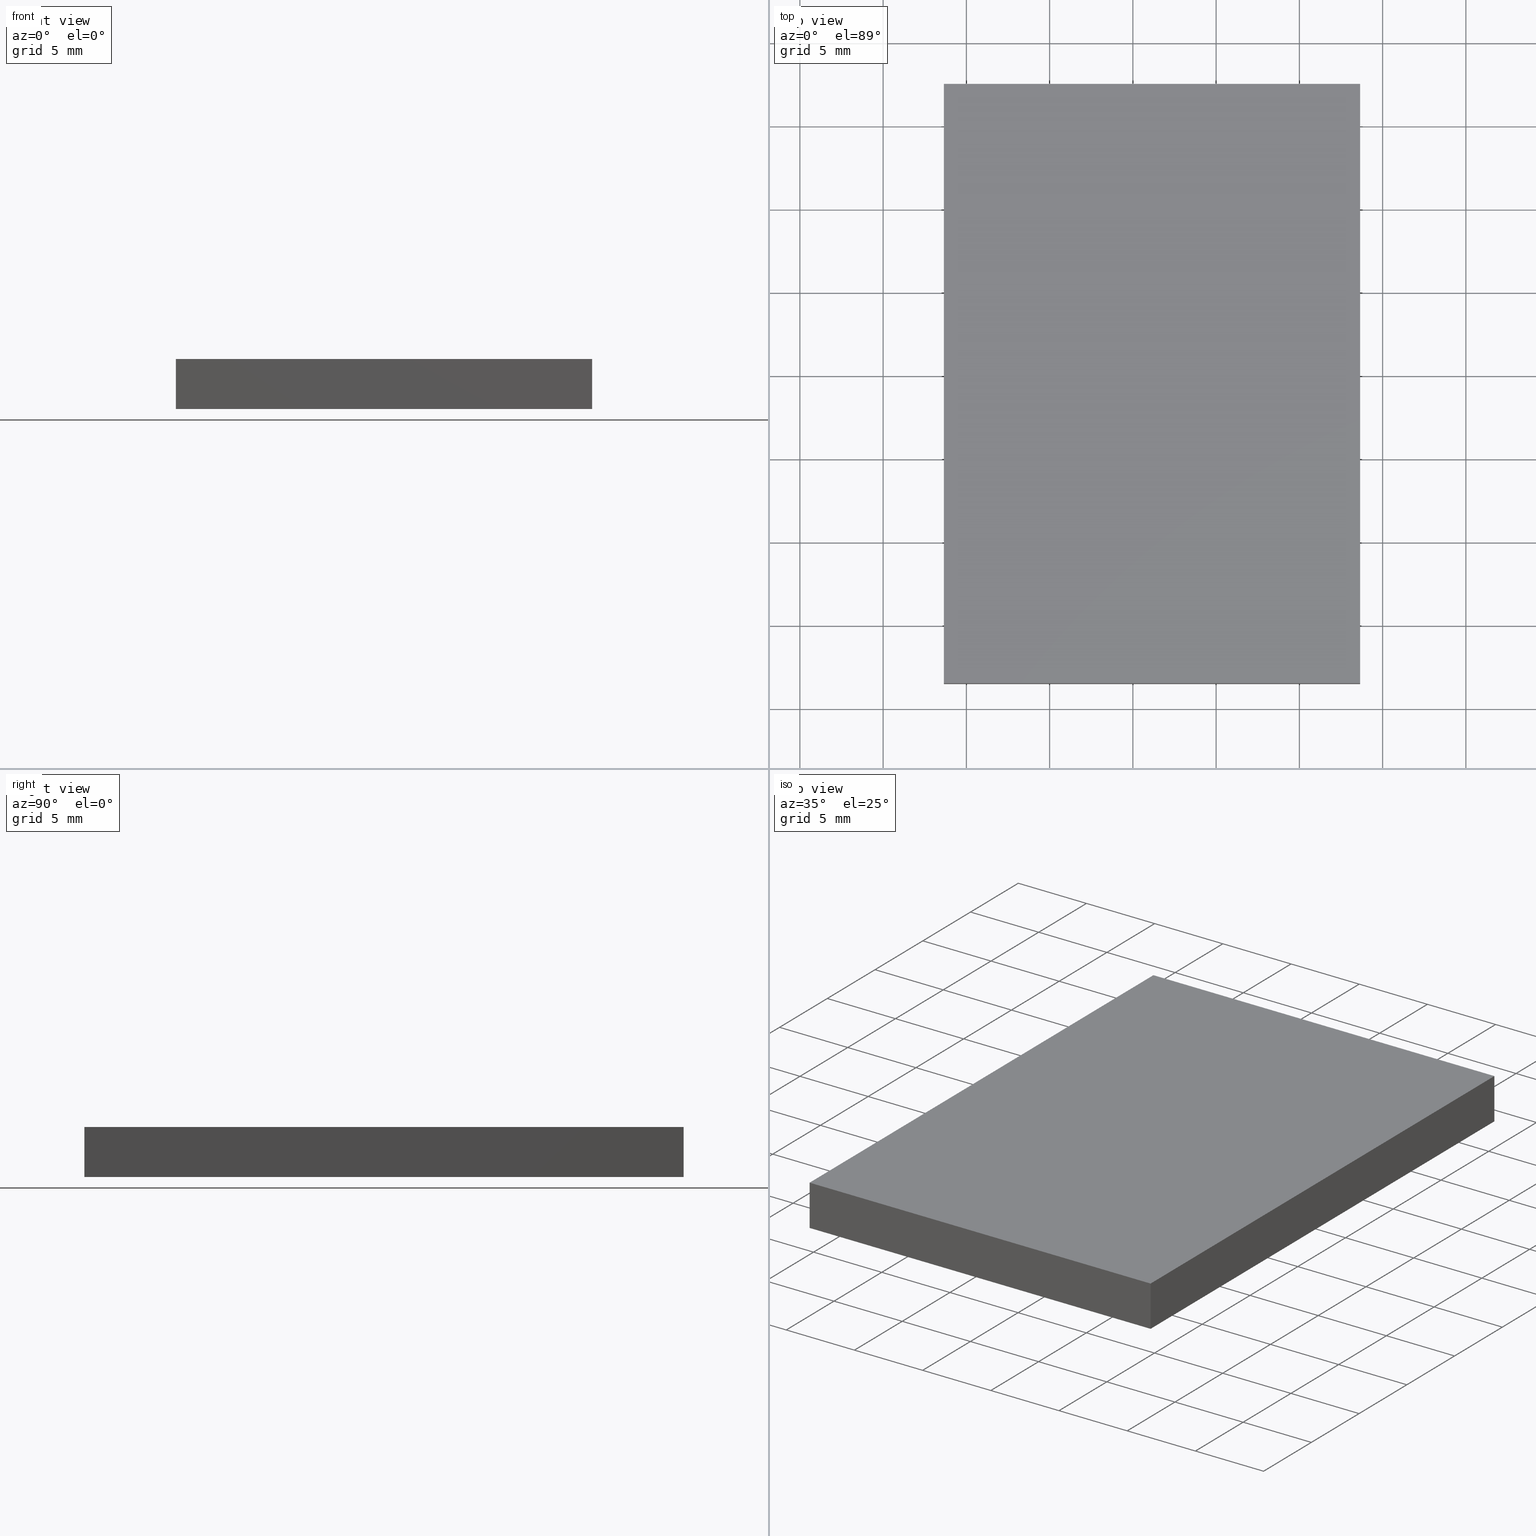
[diagram: canonical four-view strip — front | top / right | iso, engineering-drawing reading convention]
A machine part, canonical four-view strip (front | top / right | iso — engineering-drawing reading convention). The complete STEP part file that produces these views, byte-faithful:
ISO-10303-21;
HEADER;
FILE_DESCRIPTION (( 'STEP AP203' ),
    '1' );
FILE_NAME ('340523.STEP',
    '2019-07-30T07:29:26',
    ( '' ),
    ( '' ),
    'SwSTEP 2.0',
    'SolidWorks 2016',
    '' );
FILE_SCHEMA (( 'CONFIG_CONTROL_DESIGN' ));
ENDSEC;

DATA;
#1 = PERSON_AND_ORGANIZATION_ROLE ( 'design_supplier' ) ;
#2 = CC_DESIGN_PERSON_AND_ORGANIZATION_ASSIGNMENT ( #62, #280, ( #296 ) ) ;
#3 = APPROVAL_ROLE ( '' ) ;
#4 = LOCAL_TIME ( 15, 29, 26.00000000000000000, #18 ) ;
#5 = ORIENTED_EDGE ( 'NONE', *, *, #182, .T. ) ;
#6 = APPLICATION_CONTEXT ( 'configuration controlled 3d designs of mechanical parts and assemblies' ) ;
#7 = COORDINATED_UNIVERSAL_TIME_OFFSET ( 8, 0, .AHEAD. ) ;
#8 = PERSON_AND_ORGANIZATION ( #311, #142 ) ;
#9 = DATE_AND_TIME ( #122, #149 ) ;
#10 = VERTEX_POINT ( 'NONE', #92 ) ;
#11 = AXIS2_PLACEMENT_3D ( 'NONE', #20, #292, #147 ) ;
#12 = DESIGN_CONTEXT ( 'detailed design', #6, 'design' ) ;
#13 = VECTOR ( 'NONE', #24, 1000.000000000000000 ) ;
#14 = PRODUCT_DEFINITION ( 'δ֪', '', #206, #12 ) ;
#15 = DIRECTION ( 'NONE',  ( 2.891205793294678800E-016, -1.000000000000000000, 0.0000000000000000000 ) ) ;
#16 = DIRECTION ( 'NONE',  ( -0.0000000000000000000, 0.0000000000000000000, 1.000000000000000000 ) ) ;
#17 = PERSON_AND_ORGANIZATION ( #311, #142 ) ;
#18 = COORDINATED_UNIVERSAL_TIME_OFFSET ( 8, 0, .AHEAD. ) ;
#19 = FACE_OUTER_BOUND ( 'NONE', #86, .T. ) ;
#20 = CARTESIAN_POINT ( 'NONE',  ( 0.0000000000000000000, 0.0000000000000000000, 0.0000000000000000000 ) ) ;
#21 = CC_DESIGN_SECURITY_CLASSIFICATION ( #296, ( #133 ) ) ;
#22 = CARTESIAN_POINT ( 'NONE',  ( -6.351626016260158100, -28.47967479674797200, 3.000000000000000000 ) ) ;
#23 = LOCAL_TIME ( 15, 29, 26.00000000000000000, #53 ) ;
#24 = DIRECTION ( 'NONE',  ( -0.0000000000000000000, -0.0000000000000000000, -1.000000000000000000 ) ) ;
#25 = ORIENTED_EDGE ( 'NONE', *, *, #109, .F. ) ;
#26 = CARTESIAN_POINT ( 'NONE',  ( 18.64837398373983700, 7.520325203252024700, 0.0000000000000000000 ) ) ;
#27 = CARTESIAN_POINT ( 'NONE',  ( -6.351626016260162500, 7.520325203252024700, 3.000000000000000000 ) ) ;
#28 = VECTOR ( 'NONE', #250, 1000.000000000000000 ) ;
#29 = ORIENTED_EDGE ( 'NONE', *, *, #124, .T. ) ;
#30 = PERSON_AND_ORGANIZATION_ROLE ( 'creator' ) ;
#31 = CC_DESIGN_DATE_AND_TIME_ASSIGNMENT ( #140, #297, ( #296 ) ) ;
#32 = APPROVAL_STATUS ( 'not_yet_approved' ) ;
#33 = PERSON_AND_ORGANIZATION_ROLE ( 'creator' ) ;
#34 = APPROVAL_PERSON_ORGANIZATION ( #148, #99, #129 ) ;
#35 = VERTEX_POINT ( 'NONE', #70 ) ;
#36 = CC_DESIGN_DATE_AND_TIME_ASSIGNMENT ( #101, #58, ( #14 ) ) ;
#37 = CC_DESIGN_PERSON_AND_ORGANIZATION_ASSIGNMENT ( #126, #1, ( #133 ) ) ;
#38 = DATE_AND_TIME ( #74, #4 ) ;
#39 = EDGE_LOOP ( 'NONE', ( #217, #25, #55, #286 ) ) ;
#40 = DATE_AND_TIME ( #47, #283 ) ;
#41 = ORIENTED_EDGE ( 'NONE', *, *, #194, .F. ) ;
#42 = CARTESIAN_POINT ( 'NONE',  ( -6.351626016260162500, 7.520325203252024700, 3.000000000000000000 ) ) ;
#43 = PERSON_AND_ORGANIZATION ( #311, #142 ) ;
#44 = VERTEX_POINT ( 'NONE', #165 ) ;
#45 = CC_DESIGN_PERSON_AND_ORGANIZATION_ASSIGNMENT ( #179, #33, ( #163 ) ) ;
#46 =( NAMED_UNIT ( * ) SI_UNIT ( $, .STERADIAN. ) SOLID_ANGLE_UNIT ( ) );
#47 = CALENDAR_DATE ( 2019, 30, 7 ) ;
#48 = ORIENTED_EDGE ( 'NONE', *, *, #157, .F. ) ;
#49 = MECHANICAL_CONTEXT ( 'NONE', #146, 'mechanical' ) ;
#50 = CARTESIAN_POINT ( 'NONE',  ( 18.64837398373984800, -28.47967479674797200, 3.000000000000000000 ) ) ;
#51 = CC_DESIGN_PERSON_AND_ORGANIZATION_ASSIGNMENT ( #314, #276, ( #206 ) ) ;
#52 = CARTESIAN_POINT ( 'NONE',  ( -6.351626016260158100, -28.47967479674797200, 3.000000000000000000 ) ) ;
#53 = COORDINATED_UNIVERSAL_TIME_OFFSET ( 8, 0, .AHEAD. ) ;
#54 = LOCAL_TIME ( 15, 29, 26.00000000000000000, #252 ) ;
#55 = ORIENTED_EDGE ( 'NONE', *, *, #182, .F. ) ;
#56 = APPROVAL ( #211, 'δָ��' ) ;
#57 = VECTOR ( 'NONE', #268, 1000.000000000000000 ) ;
#58 = DATE_TIME_ROLE ( 'creation_date' ) ;
#59 = APPROVAL_DATE_TIME ( #238, #56 ) ;
#60 = LINE ( 'NONE', #52, #28 ) ;
#61 = AXIS2_PLACEMENT_3D ( 'NONE', #233, #207, #117 ) ;
#62 = PERSON_AND_ORGANIZATION ( #311, #142 ) ;
#63 = LINE ( 'NONE', #42, #224 ) ;
#64 = COORDINATED_UNIVERSAL_TIME_OFFSET ( 8, 0, .AHEAD. ) ;
#65 = COORDINATED_UNIVERSAL_TIME_OFFSET ( 8, 0, .AHEAD. ) ;
#66 = DIRECTION ( 'NONE',  ( 0.0000000000000000000, -0.0000000000000000000, -1.000000000000000000 ) ) ;
#67 = CC_DESIGN_APPROVAL ( #56, ( #296 ) ) ;
#68 = ADVANCED_FACE ( 'NONE', ( #298 ), #306, .T. ) ;
#69 = LINE ( 'NONE', #290, #13 ) ;
#70 = CARTESIAN_POINT ( 'NONE',  ( 18.64837398373983700, 7.520325203252024700, 3.000000000000000000 ) ) ;
#71 = FACE_OUTER_BOUND ( 'NONE', #302, .T. ) ;
#72 = APPLICATION_CONTEXT ( 'configuration controlled 3d designs of mechanical parts and assemblies' ) ;
#73 = LOCAL_TIME ( 15, 29, 26.00000000000000000, #153 ) ;
#74 = CALENDAR_DATE ( 2019, 30, 7 ) ;
#75 = DIRECTION ( 'NONE',  ( -1.000000000000000000, -0.0000000000000000000, -0.0000000000000000000 ) ) ;
#76 = DIRECTION ( 'NONE',  ( 1.000000000000000000, 1.204669080539449300E-016, -0.0000000000000000000 ) ) ;
#77 = EDGE_CURVE ( 'NONE', #180, #190, #108, .T. ) ;
#78 = APPROVAL_ROLE ( '' ) ;
#79 = APPROVAL_PERSON_ORGANIZATION ( #43, #82, #187 ) ;
#80 = ORIENTED_EDGE ( 'NONE', *, *, #88, .F. ) ;
#81 = APPROVAL_ROLE ( '' ) ;
#82 = APPROVAL ( #32, 'δָ��' ) ;
#83 = COORDINATED_UNIVERSAL_TIME_OFFSET ( 8, 0, .AHEAD. ) ;
#84 = CC_DESIGN_PERSON_AND_ORGANIZATION_ASSIGNMENT ( #203, #277, ( #299 ) ) ;
#85 = CALENDAR_DATE ( 2019, 30, 7 ) ;
#86 = EDGE_LOOP ( 'NONE', ( #281, #48, #231, #168 ) ) ;
#87 = DESIGN_CONTEXT ( 'detailed design', #72, 'design' ) ;
#88 = EDGE_CURVE ( 'NONE', #174, #180, #63, .T. ) ;
#89 = LOCAL_TIME ( 15, 29, 26.00000000000000000, #7 ) ;
#90 = ORIENTED_EDGE ( 'NONE', *, *, #173, .F. ) ;
#91 = DIRECTION ( 'NONE',  ( -1.000000000000000000, -2.891205793294678800E-016, 0.0000000000000000000 ) ) ;
#92 = CARTESIAN_POINT ( 'NONE',  ( 18.64837398373984800, -28.47967479674797200, 0.0000000000000000000 ) ) ;
#93 = PERSON_AND_ORGANIZATION ( #311, #142 ) ;
#94 = ORIENTED_EDGE ( 'NONE', *, *, #88, .T. ) ;
#95 = AXIS2_PLACEMENT_3D ( 'NONE', #100, #151, #98 ) ;
#96 = ADVANCED_FACE ( 'NONE', ( #71 ), #287, .F. ) ;
#97 = DIRECTION ( 'NONE',  ( -1.000000000000000000, -0.0000000000000000000, -0.0000000000000000000 ) ) ;
#98 = DIRECTION ( 'NONE',  ( 0.0000000000000000000, -0.0000000000000000000, 1.000000000000000000 ) ) ;
#99 = APPROVAL ( #183, 'δָ��' ) ;
#100 = CARTESIAN_POINT ( 'NONE',  ( -6.351626016260158100, -28.47967479674797200, 3.000000000000000000 ) ) ;
#101 = DATE_AND_TIME ( #164, #215 ) ;
#102 = LINE ( 'NONE', #204, #235 ) ;
#103 = EDGE_LOOP ( 'NONE', ( #159, #236, #90, #116 ) ) ;
#104 = SECURITY_CLASSIFICATION_LEVEL ( 'unclassified' ) ;
#105 = APPLICATION_PROTOCOL_DEFINITION ( 'international standard', 'config_control_design', 1994, #72 ) ;
#106 = APPROVAL_DATE_TIME ( #185, #138 ) ;
#107 = FACE_OUTER_BOUND ( 'NONE', #39, .T. ) ;
#108 = LINE ( 'NONE', #197, #57 ) ;
#109 = EDGE_CURVE ( 'NONE', #200, #10, #239, .T. ) ;
#110 = AXIS2_PLACEMENT_3D ( 'NONE', #196, #113, #66 ) ;
#111 = PERSON_AND_ORGANIZATION ( #311, #142 ) ;
#112 = PRODUCT_DEFINITION_SHAPE ( 'NONE', 'NONE',  #14 ) ;
#113 = DIRECTION ( 'NONE',  ( 0.0000000000000000000, -1.000000000000000000, 0.0000000000000000000 ) ) ;
#114 = CC_DESIGN_PERSON_AND_ORGANIZATION_ASSIGNMENT ( #284, #152, ( #170 ) ) ;
#115 = ADVANCED_FACE ( 'NONE', ( #19 ), #269, .F. ) ;
#116 = ORIENTED_EDGE ( 'NONE', *, *, #304, .F. ) ;
#117 = DIRECTION ( 'NONE',  ( 1.000000000000000000, 0.0000000000000000000, 0.0000000000000000000 ) ) ;
#118 = EDGE_CURVE ( 'NONE', #35, #155, #254, .T. ) ;
#119 = ADVANCED_FACE ( 'NONE', ( #249 ), #291, .F. ) ;
#120 = CARTESIAN_POINT ( 'NONE',  ( -6.351626016260162500, 7.520325203252024700, 3.000000000000000000 ) ) ;
#121 = PLANE ( 'NONE',  #95 ) ;
#122 = CALENDAR_DATE ( 2019, 30, 7 ) ;
#123 = CARTESIAN_POINT ( 'NONE',  ( 0.0000000000000000000, 0.0000000000000000000, 0.0000000000000000000 ) ) ;
#124 = EDGE_CURVE ( 'NONE', #35, #174, #305, .T. ) ;
#125 = DATE_TIME_ROLE ( 'creation_date' ) ;
#126 = PERSON_AND_ORGANIZATION ( #311, #142 ) ;
#127 = SECURITY_CLASSIFICATION_LEVEL ( 'unclassified' ) ;
#128 =( GEOMETRIC_REPRESENTATION_CONTEXT ( 3 ) GLOBAL_UNCERTAINTY_ASSIGNED_CONTEXT ( ( #136 ) ) GLOBAL_UNIT_ASSIGNED_CONTEXT ( ( #271, #178, #46 ) ) REPRESENTATION_CONTEXT ( 'NONE', 'WORKASPACE' ) );
#129 = APPROVAL_ROLE ( '' ) ;
#130 = DATE_AND_TIME ( #85, #89 ) ;
#131 = APPROVAL_DATE_TIME ( #38, #82 ) ;
#132 = PRODUCT_RELATED_PRODUCT_CATEGORY ( 'detail', '', ( #170 ) ) ;
#133 = PRODUCT_DEFINITION_FORMATION_WITH_SPECIFIED_SOURCE ( '�κ�', '', #198, .NOT_KNOWN. ) ;
#134 = LINE ( 'NONE', #248, #205 ) ;
#135 = ORIENTED_EDGE ( 'NONE', *, *, #118, .F. ) ;
#136 = UNCERTAINTY_MEASURE_WITH_UNIT (LENGTH_MEASURE( 1.000000000000000100E-005 ), #271, 'distance_accuracy_value', 'NONE');
#137 = EDGE_CURVE ( 'NONE', #44, #190, #134, .T. ) ;
#138 = APPROVAL ( #181, 'δָ��' ) ;
#139 = COORDINATED_UNIVERSAL_TIME_OFFSET ( 8, 0, .AHEAD. ) ;
#140 = DATE_AND_TIME ( #216, #274 ) ;
#141 = CARTESIAN_POINT ( 'NONE',  ( 18.64837398373983700, 7.520325203252024700, 3.000000000000000000 ) ) ;
#142 = ORGANIZATION ( 'δָ��', 'δָ��', '' ) ;
#143 = DIRECTION ( 'NONE',  ( -0.0000000000000000000, -0.0000000000000000000, -1.000000000000000000 ) ) ;
#144 = ORIENTED_EDGE ( 'NONE', *, *, #77, .F. ) ;
#145 = CC_DESIGN_PERSON_AND_ORGANIZATION_ASSIGNMENT ( #199, #229, ( #198 ) ) ;
#146 = APPLICATION_CONTEXT ( 'configuration controlled 3d designs of mechanical parts and assemblies' ) ;
#147 = DIRECTION ( 'NONE',  ( 1.000000000000000000, 0.0000000000000000000, 0.0000000000000000000 ) ) ;
#148 = PERSON_AND_ORGANIZATION ( #311, #142 ) ;
#149 = LOCAL_TIME ( 15, 29, 26.00000000000000000, #83 ) ;
#150 = APPLICATION_PROTOCOL_DEFINITION ( 'international standard', 'config_control_design', 1994, #146 ) ;
#151 = DIRECTION ( 'NONE',  ( 0.0000000000000000000, 1.000000000000000000, 0.0000000000000000000 ) ) ;
#152 = PERSON_AND_ORGANIZATION_ROLE ( 'design_owner' ) ;
#153 = COORDINATED_UNIVERSAL_TIME_OFFSET ( 8, 0, .AHEAD. ) ;
#154 = VECTOR ( 'NONE', #97, 1000.000000000000000 ) ;
#155 = VERTEX_POINT ( 'NONE', #172 ) ;
#156 = MECHANICAL_CONTEXT ( 'NONE', #275, 'mechanical' ) ;
#157 = EDGE_CURVE ( 'NONE', #174, #44, #69, .T. ) ;
#158 = LOCAL_TIME ( 15, 29, 26.00000000000000000, #65 ) ;
#159 = ORIENTED_EDGE ( 'NONE', *, *, #137, .F. ) ;
#160 = APPROVAL_DATE_TIME ( #166, #99 ) ;
#161 = LINE ( 'NONE', #313, #154 ) ;
#162 = EDGE_LOOP ( 'NONE', ( #94, #5, #242, #29 ) ) ;
#163 = PRODUCT_DEFINITION ( 'δ֪', '', #133, #87 ) ;
#164 = CALENDAR_DATE ( 2019, 30, 7 ) ;
#165 = CARTESIAN_POINT ( 'NONE',  ( -6.351626016260162500, 7.520325203252024700, 0.0000000000000000000 ) ) ;
#166 = DATE_AND_TIME ( #300, #73 ) ;
#167 = PERSON_AND_ORGANIZATION ( #311, #142 ) ;
#168 = ORIENTED_EDGE ( 'NONE', *, *, #118, .T. ) ;
#169 = APPROVAL ( #260, 'δָ��' ) ;
#170 = PRODUCT ( '340523', '340523', '', ( #156 ) ) ;
#171 = DIRECTION ( 'NONE',  ( 0.0000000000000000000, 0.0000000000000000000, 1.000000000000000000 ) ) ;
#172 = CARTESIAN_POINT ( 'NONE',  ( 18.64837398373983700, 7.520325203252024700, 0.0000000000000000000 ) ) ;
#173 = EDGE_CURVE ( 'NONE', #10, #155, #223, .T. ) ;
#174 = VERTEX_POINT ( 'NONE', #27 ) ;
#175 = CC_DESIGN_SECURITY_CLASSIFICATION ( #299, ( #206 ) ) ;
#176 = DIRECTION ( 'NONE',  ( 1.204669080539449300E-016, -1.000000000000000000, 0.0000000000000000000 ) ) ;
#177 = DIRECTION ( 'NONE',  ( 1.000000000000000000, 0.0000000000000000000, 0.0000000000000000000 ) ) ;
#178 =( NAMED_UNIT ( * ) PLANE_ANGLE_UNIT ( ) SI_UNIT ( $, .RADIAN. ) );
#179 = PERSON_AND_ORGANIZATION ( #311, #142 ) ;
#180 = VERTEX_POINT ( 'NONE', #22 ) ;
#181 = APPROVAL_STATUS ( 'not_yet_approved' ) ;
#182 = EDGE_CURVE ( 'NONE', #180, #200, #60, .T. ) ;
#183 = APPROVAL_STATUS ( 'not_yet_approved' ) ;
#184 = APPLICATION_PROTOCOL_DEFINITION ( 'international standard', 'config_control_design', 1994, #275 ) ;
#185 = DATE_AND_TIME ( #261, #23 ) ;
#186 = VECTOR ( 'NONE', #75, 1000.000000000000000 ) ;
#187 = APPROVAL_ROLE ( '' ) ;
#188 = CC_DESIGN_APPROVAL ( #138, ( #299 ) ) ;
#189 = APPROVAL_PERSON_ORGANIZATION ( #17, #138, #3 ) ;
#190 = VERTEX_POINT ( 'NONE', #202 ) ;
#191 = AXIS2_PLACEMENT_3D ( 'NONE', #123, #171, #227 ) ;
#192 = LINE ( 'NONE', #201, #262 ) ;
#193 = ORIENTED_EDGE ( 'NONE', *, *, #137, .T. ) ;
#194 = EDGE_CURVE ( 'NONE', #200, #35, #102, .T. ) ;
#195 = CARTESIAN_POINT ( 'NONE',  ( 0.0000000000000000000, 0.0000000000000000000, 3.000000000000000000 ) ) ;
#196 = CARTESIAN_POINT ( 'NONE',  ( -6.351626016260162500, 7.520325203252024700, 3.000000000000000000 ) ) ;
#197 = CARTESIAN_POINT ( 'NONE',  ( -6.351626016260158100, -28.47967479674797200, 3.000000000000000000 ) ) ;
#198 = PRODUCT ( '340523', '340523', '', ( #49 ) ) ;
#199 = PERSON_AND_ORGANIZATION ( #311, #142 ) ;
#200 = VERTEX_POINT ( 'NONE', #50 ) ;
#201 = CARTESIAN_POINT ( 'NONE',  ( -6.351626016260158100, -28.47967479674797200, 0.0000000000000000000 ) ) ;
#202 = CARTESIAN_POINT ( 'NONE',  ( -6.351626016260158100, -28.47967479674797200, 0.0000000000000000000 ) ) ;
#203 = PERSON_AND_ORGANIZATION ( #311, #142 ) ;
#204 = CARTESIAN_POINT ( 'NONE',  ( 18.64837398373983700, 7.520325203252024700, 3.000000000000000000 ) ) ;
#205 = VECTOR ( 'NONE', #176, 1000.000000000000000 ) ;
#206 = PRODUCT_DEFINITION_FORMATION_WITH_SPECIFIED_SOURCE ( '�κ�', '', #170, .NOT_KNOWN. ) ;
#207 = DIRECTION ( 'NONE',  ( 0.0000000000000000000, 0.0000000000000000000, 1.000000000000000000 ) ) ;
#208 = DATE_TIME_ROLE ( 'classification_date' ) ;
#209 = AXIS2_PLACEMENT_3D ( 'NONE', #315, #76, #272 ) ;
#210 = APPROVAL_DATE_TIME ( #9, #169 ) ;
#211 = APPROVAL_STATUS ( 'not_yet_approved' ) ;
#212 = APPROVAL_STATUS ( 'not_yet_approved' ) ;
#213 = PERSON_AND_ORGANIZATION_ROLE ( 'design_supplier' ) ;
#214 = PRODUCT_RELATED_PRODUCT_CATEGORY ( 'detail', '', ( #198 ) ) ;
#215 = LOCAL_TIME ( 15, 29, 26.00000000000000000, #139 ) ;
#216 = CALENDAR_DATE ( 2019, 30, 7 ) ;
#217 = ORIENTED_EDGE ( 'NONE', *, *, #304, .T. ) ;
#218 = AXIS2_PLACEMENT_3D ( 'NONE', #195, #16, #220 ) ;
#219 = APPROVAL_PERSON_ORGANIZATION ( #167, #169, #78 ) ;
#220 = DIRECTION ( 'NONE',  ( 1.000000000000000000, 0.0000000000000000000, 0.0000000000000000000 ) ) ;
#221 = CC_DESIGN_APPROVAL ( #99, ( #206 ) ) ;
#222 = DIRECTION ( 'NONE',  ( 1.204669080539449300E-016, -1.000000000000000000, 0.0000000000000000000 ) ) ;
#223 = LINE ( 'NONE', #26, #301 ) ;
#224 = VECTOR ( 'NONE', #222, 1000.000000000000000 ) ;
#225 = AXIS2_PLACEMENT_3D ( 'NONE', #141, #91, #15 ) ;
#226 = ADVANCED_BREP_SHAPE_REPRESENTATION ( '340523', ( #278, #61 ), #128 ) ;
#227 = DIRECTION ( 'NONE',  ( 1.000000000000000000, 0.0000000000000000000, 0.0000000000000000000 ) ) ;
#228 = ADVANCED_FACE ( 'NONE', ( #309 ), #255, .F. ) ;
#229 = PERSON_AND_ORGANIZATION_ROLE ( 'design_owner' ) ;
#230 = EDGE_CURVE ( 'NONE', #155, #44, #161, .T. ) ;
#231 = ORIENTED_EDGE ( 'NONE', *, *, #124, .F. ) ;
#232 = CC_DESIGN_PERSON_AND_ORGANIZATION_ASSIGNMENT ( #111, #237, ( #14 ) ) ;
#233 = CARTESIAN_POINT ( 'NONE',  ( 0.0000000000000000000, 0.0000000000000000000, 0.0000000000000000000 ) ) ;
#234 = ADVANCED_FACE ( 'NONE', ( #107 ), #121, .F. ) ;
#235 = VECTOR ( 'NONE', #251, 1000.000000000000000 ) ;
#236 = ORIENTED_EDGE ( 'NONE', *, *, #230, .F. ) ;
#237 = PERSON_AND_ORGANIZATION_ROLE ( 'creator' ) ;
#238 = DATE_AND_TIME ( #245, #158 ) ;
#239 = LINE ( 'NONE', #247, #264 ) ;
#240 = APPROVAL ( #212, 'δָ��' ) ;
#241 = DATE_AND_TIME ( #294, #54 ) ;
#242 = ORIENTED_EDGE ( 'NONE', *, *, #194, .T. ) ;
#243 = CC_DESIGN_APPROVAL ( #82, ( #163 ) ) ;
#244 = ORIENTED_EDGE ( 'NONE', *, *, #109, .T. ) ;
#245 = CALENDAR_DATE ( 2019, 30, 7 ) ;
#246 = EDGE_LOOP ( 'NONE', ( #193, #144, #80, #259 ) ) ;
#247 = CARTESIAN_POINT ( 'NONE',  ( 18.64837398373984800, -28.47967479674797200, 3.000000000000000000 ) ) ;
#248 = CARTESIAN_POINT ( 'NONE',  ( -6.351626016260162500, 7.520325203252024700, 0.0000000000000000000 ) ) ;
#249 = FACE_OUTER_BOUND ( 'NONE', #246, .T. ) ;
#250 = DIRECTION ( 'NONE',  ( 1.000000000000000000, 0.0000000000000000000, 0.0000000000000000000 ) ) ;
#251 = DIRECTION ( 'NONE',  ( -2.891205793294678800E-016, 1.000000000000000000, -0.0000000000000000000 ) ) ;
#252 = COORDINATED_UNIVERSAL_TIME_OFFSET ( 8, 0, .AHEAD. ) ;
#253 = CC_DESIGN_PERSON_AND_ORGANIZATION_ASSIGNMENT ( #265, #213, ( #206 ) ) ;
#254 = LINE ( 'NONE', #267, #295 ) ;
#255 = PLANE ( 'NONE',  #11 ) ;
#256 = APPLICATION_PROTOCOL_DEFINITION ( 'international standard', 'config_control_design', 1994, #6 ) ;
#257 = CC_DESIGN_APPROVAL ( #169, ( #133 ) ) ;
#258 = COORDINATED_UNIVERSAL_TIME_OFFSET ( 8, 0, .AHEAD. ) ;
#259 = ORIENTED_EDGE ( 'NONE', *, *, #157, .T. ) ;
#260 = APPROVAL_STATUS ( 'not_yet_approved' ) ;
#261 = CALENDAR_DATE ( 2019, 30, 7 ) ;
#262 = VECTOR ( 'NONE', #177, 1000.000000000000000 ) ;
#263 = PERSON_AND_ORGANIZATION ( #311, #142 ) ;
#264 = VECTOR ( 'NONE', #285, 1000.000000000000000 ) ;
#265 = PERSON_AND_ORGANIZATION ( #311, #142 ) ;
#266 = APPROVAL_PERSON_ORGANIZATION ( #8, #56, #279 ) ;
#267 = CARTESIAN_POINT ( 'NONE',  ( 18.64837398373983700, 7.520325203252024700, 3.000000000000000000 ) ) ;
#268 = DIRECTION ( 'NONE',  ( -0.0000000000000000000, -0.0000000000000000000, -1.000000000000000000 ) ) ;
#269 = PLANE ( 'NONE',  #110 ) ;
#270 = CC_DESIGN_PERSON_AND_ORGANIZATION_ASSIGNMENT ( #263, #30, ( #133 ) ) ;
#271 =( LENGTH_UNIT ( ) NAMED_UNIT ( * ) SI_UNIT ( .MILLI., .METRE. ) );
#272 = DIRECTION ( 'NONE',  ( -1.204669080539449300E-016, 1.000000000000000000, 0.0000000000000000000 ) ) ;
#273 = APPROVAL_DATE_TIME ( #130, #240 ) ;
#274 = LOCAL_TIME ( 15, 29, 26.00000000000000000, #258 ) ;
#275 = APPLICATION_CONTEXT ( 'configuration controlled 3d designs of mechanical parts and assemblies' ) ;
#276 = PERSON_AND_ORGANIZATION_ROLE ( 'creator' ) ;
#277 = PERSON_AND_ORGANIZATION_ROLE ( 'classification_officer' ) ;
#278 = MANIFOLD_SOLID_BREP ( '͹̨-����1', #308 ) ;
#279 = APPROVAL_ROLE ( '' ) ;
#280 = PERSON_AND_ORGANIZATION_ROLE ( 'classification_officer' ) ;
#281 = ORIENTED_EDGE ( 'NONE', *, *, #230, .T. ) ;
#282 = CC_DESIGN_APPROVAL ( #240, ( #14 ) ) ;
#283 = LOCAL_TIME ( 15, 29, 26.00000000000000000, #64 ) ;
#284 = PERSON_AND_ORGANIZATION ( #311, #142 ) ;
#285 = DIRECTION ( 'NONE',  ( -0.0000000000000000000, -0.0000000000000000000, -1.000000000000000000 ) ) ;
#286 = ORIENTED_EDGE ( 'NONE', *, *, #77, .T. ) ;
#287 = PLANE ( 'NONE',  #225 ) ;
#288 = PRODUCT_DEFINITION_SHAPE ( 'NONE', 'NONE',  #163 ) ;
#289 = ORIENTED_EDGE ( 'NONE', *, *, #173, .T. ) ;
#290 = CARTESIAN_POINT ( 'NONE',  ( -6.351626016260162500, 7.520325203252024700, 3.000000000000000000 ) ) ;
#291 = PLANE ( 'NONE',  #209 ) ;
#292 = DIRECTION ( 'NONE',  ( -0.0000000000000000000, 0.0000000000000000000, 1.000000000000000000 ) ) ;
#293 = APPROVAL_PERSON_ORGANIZATION ( #93, #240, #81 ) ;
#294 = CALENDAR_DATE ( 2019, 30, 7 ) ;
#295 = VECTOR ( 'NONE', #143, 1000.000000000000000 ) ;
#296 = SECURITY_CLASSIFICATION ( '', '', #127 ) ;
#297 = DATE_TIME_ROLE ( 'classification_date' ) ;
#298 = FACE_OUTER_BOUND ( 'NONE', #162, .T. ) ;
#299 = SECURITY_CLASSIFICATION ( '', '', #104 ) ;
#300 = CALENDAR_DATE ( 2019, 30, 7 ) ;
#301 = VECTOR ( 'NONE', #310, 1000.000000000000000 ) ;
#302 = EDGE_LOOP ( 'NONE', ( #289, #135, #41, #244 ) ) ;
#303 = CC_DESIGN_DATE_AND_TIME_ASSIGNMENT ( #241, #125, ( #163 ) ) ;
#304 = EDGE_CURVE ( 'NONE', #190, #10, #192, .T. ) ;
#305 = LINE ( 'NONE', #120, #186 ) ;
#306 = PLANE ( 'NONE',  #218 ) ;
#307 = SHAPE_DEFINITION_REPRESENTATION ( #112, #226 ) ;
#308 = CLOSED_SHELL ( 'NONE', ( #119, #234, #96, #115, #68, #228 ) ) ;
#309 = FACE_OUTER_BOUND ( 'NONE', #103, .T. ) ;
#310 = DIRECTION ( 'NONE',  ( -2.891205793294678800E-016, 1.000000000000000000, -0.0000000000000000000 ) ) ;
#311 = PERSON ( 'δָ��', 'δָ��', 'δָ��', ('δָ��'), ('δָ��'), ('δָ��') ) ;
#312 = CC_DESIGN_DATE_AND_TIME_ASSIGNMENT ( #40, #208, ( #299 ) ) ;
#313 = CARTESIAN_POINT ( 'NONE',  ( -6.351626016260162500, 7.520325203252024700, 0.0000000000000000000 ) ) ;
#314 = PERSON_AND_ORGANIZATION ( #311, #142 ) ;
#315 = CARTESIAN_POINT ( 'NONE',  ( -6.351626016260162500, 7.520325203252024700, 3.000000000000000000 ) ) ;
ENDSEC;
END-ISO-10303-21;
